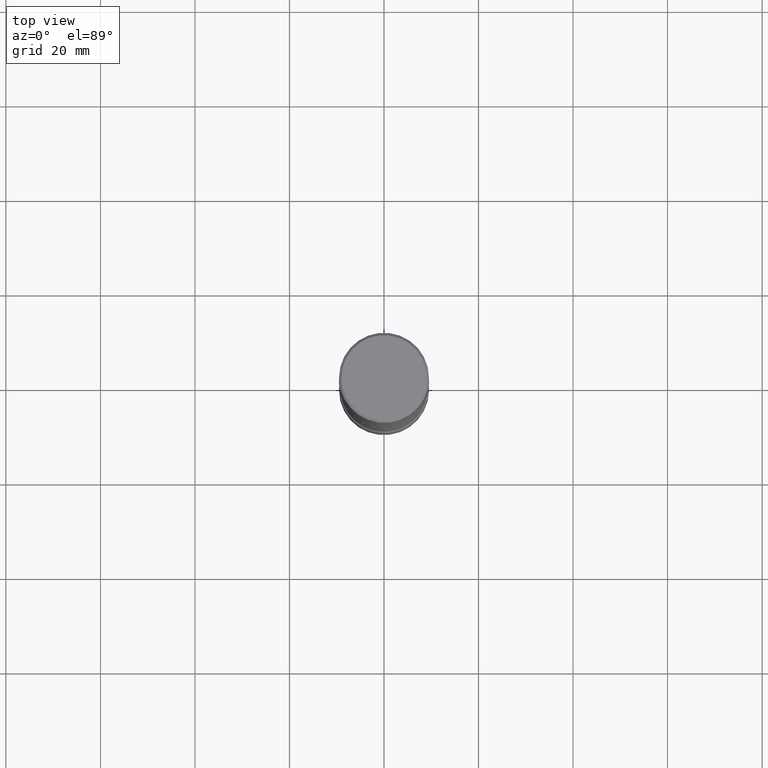
[diagram: clean part render]
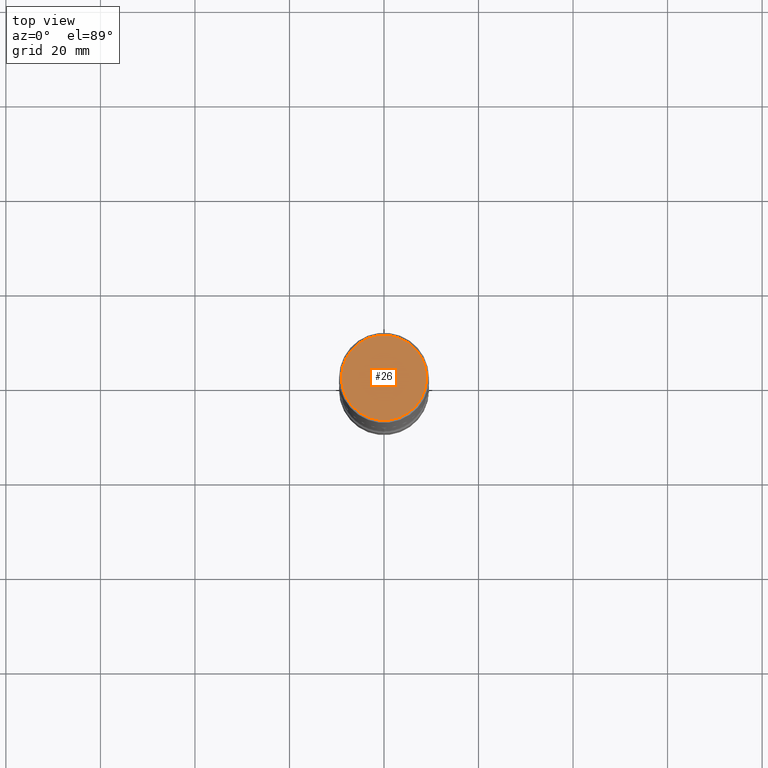
[diagram: same view with one face highlighted and labeled with its STEP entity id]
A machine part, top view. The second image highlights one B-rep face of the part: STEP entity #26.
In plain terms, the highlighted planar face has unit normal (0, -0, -1).
Its self-contained STEP definition (entity closure, byte-faithful):
#11 = DIRECTION ( 'NONE',  ( 1.000000000000000000, -6.982962677686265922E-15, 4.876231632511992667E-29 ) ) ;
#20 = DIRECTION ( 'NONE',  ( 1.000000000000000000, -6.982962677686265922E-15, 4.876231632511992667E-29 ) ) ;
#26 = ADVANCED_FACE ( 'NONE', ( #655 ), #468, .F. ) ;
#60 = EDGE_CURVE ( 'NONE', #233, #639, #692, .T. ) ;
#97 = CARTESIAN_POINT ( 'NONE',  ( -1.043851414335219820E-46, 1.490343170380447200E-32, 4.268512490100411279E-18 ) ) ;
#99 = CARTESIAN_POINT ( 'NONE',  ( 0.3549999999999996492, -2.538996582575038287E-15, 4.268512490117958041E-18 ) ) ;
#146 = AXIS2_PLACEMENT_3D ( 'NONE', #658, #592, #20 ) ;
#163 = DIRECTION ( 'NONE',  ( -2.445468806185136597E-29, 3.491481338843145583E-15, 1.000000000000000000 ) ) ;
#203 = EDGE_LOOP ( 'NONE', ( #308, #246 ) ) ;
#233 = VERTEX_POINT ( 'NONE', #354 ) ;
#246 = ORIENTED_EDGE ( 'NONE', *, *, #698, .T. ) ;
#308 = ORIENTED_EDGE ( 'NONE', *, *, #60, .T. ) ;
#332 = DIRECTION ( 'NONE',  ( 2.438088387897960049E-29, -3.491481338843145188E-15, -1.000000000000000000 ) ) ;
#354 = CARTESIAN_POINT ( 'NONE',  ( -0.3549999999999996492, 2.513866563967053097E-15, 4.268512490082953109E-18 ) ) ;
#446 = AXIS2_PLACEMENT_3D ( 'NONE', #97, #163, #11 ) ;
#468 = PLANE ( 'NONE',  #566 ) ;
#566 = AXIS2_PLACEMENT_3D ( 'NONE', #666, #332, #646 ) ;
#569 = CIRCLE ( 'NONE', #446, 0.3549999999999996492 ) ;
#592 = DIRECTION ( 'NONE',  ( -2.445468806185136597E-29, 3.491481338843145583E-15, 1.000000000000000000 ) ) ;
#639 = VERTEX_POINT ( 'NONE', #99 ) ;
#646 = DIRECTION ( 'NONE',  ( -1.000000000000000000, 6.982962677686265922E-15, -4.876176775795935793E-29 ) ) ;
#655 = FACE_OUTER_BOUND ( 'NONE', #203, .T. ) ;
#658 = CARTESIAN_POINT ( 'NONE',  ( -1.043851414335219820E-46, 1.490343170380447200E-32, 4.268512490100411279E-18 ) ) ;
#666 = CARTESIAN_POINT ( 'NONE',  ( 2.478951750578621842E-15, 0.3549999999999996492, -1.237341619044265047E-15 ) ) ;
#692 = CIRCLE ( 'NONE', #146, 0.3549999999999996492 ) ;
#698 = EDGE_CURVE ( 'NONE', #639, #233, #569, .T. ) ;